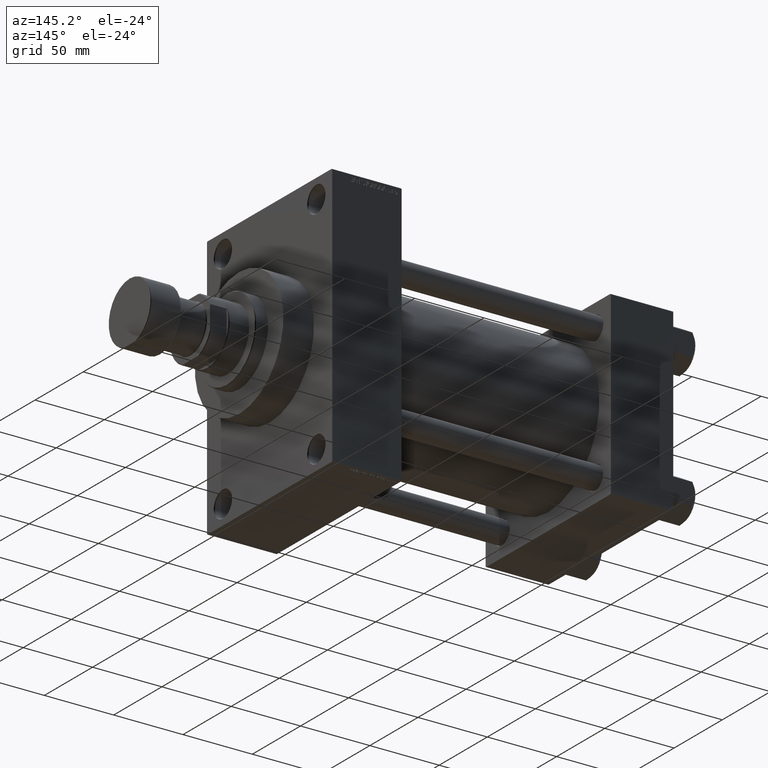
[diagram: clean part render]
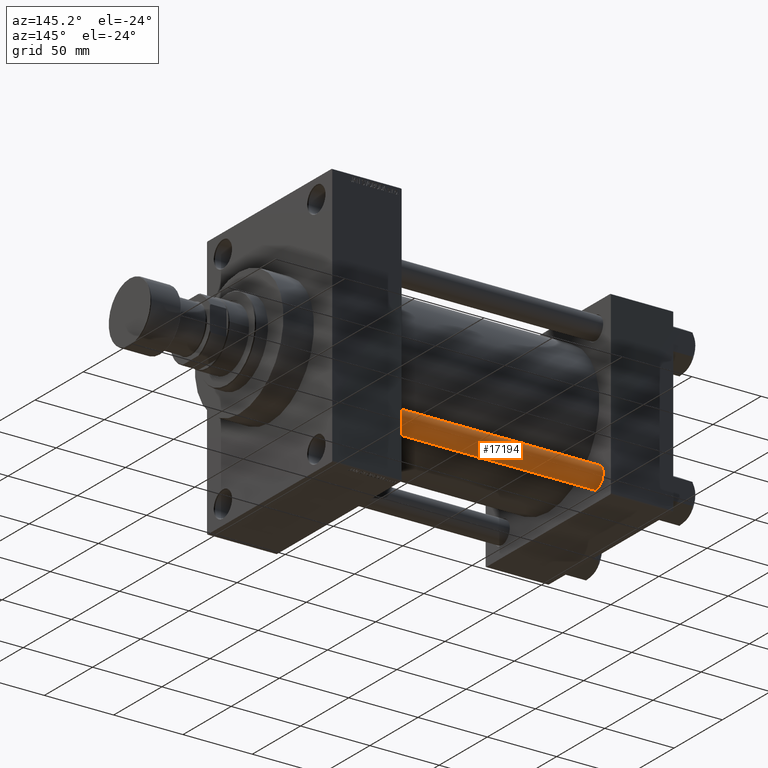
[diagram: same view with one face highlighted and labeled with its STEP entity id]
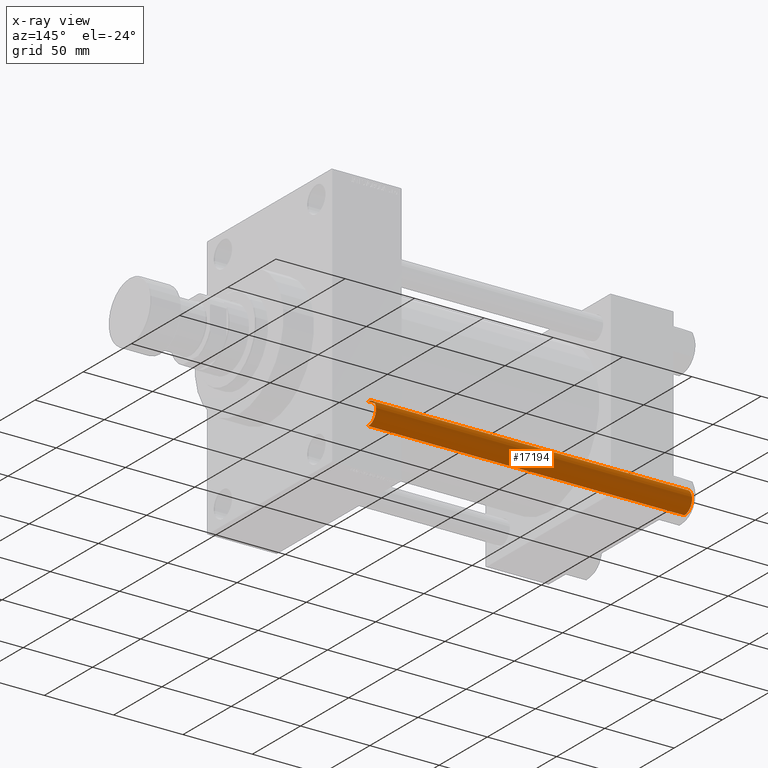
[diagram: x-ray of the same camera — body ghosted, the highlighted face saturated]
A machine part, auxiliary view. The second image highlights one B-rep face of the part: STEP entity #17194.
The next image is the same camera in x-ray: the body ghosted, the highlighted face saturated — about 0% of this face is hidden behind the body in this view.
In plain terms, the highlighted cylindrical surface (edge-blend (fillet) strip) has radius 8 mm, axis along (-1, -0, 0).
Its self-contained STEP definition (entity closure, byte-faithful):
#600 = ORIENTED_EDGE ( 'NONE', *, *, #33848, .T. ) ;
#968 = VERTEX_POINT ( 'NONE', #35203 ) ;
#1947 = CIRCLE ( 'NONE', #26798, 8.000000000000000000 ) ;
#2840 = ORIENTED_EDGE ( 'NONE', *, *, #10446, .T. ) ;
#3716 = VECTOR ( 'NONE', #20575, 1000.000000000000000 ) ;
#5056 = CARTESIAN_POINT ( 'NONE',  ( 8.000000000000000000, 9.797174393178823685E-16, 229.0000000000000000 ) ) ;
#6238 = CIRCLE ( 'NONE', #8601, 8.000000000000000000 ) ;
#8601 = AXIS2_PLACEMENT_3D ( 'NONE', #32843, #9972, #36015 ) ;
#8781 = DIRECTION ( 'NONE',  ( -1.000000000000000000, 0.000000000000000000, 0.000000000000000000 ) ) ;
#9972 = DIRECTION ( 'NONE',  ( 0.000000000000000000, 0.000000000000000000, -1.000000000000000000 ) ) ;
#10446 = EDGE_CURVE ( 'NONE', #42072, #21116, #38385, .T. ) ;
#14068 = EDGE_CURVE ( 'NONE', #968, #42072, #6238, .T. ) ;
#16225 = VECTOR ( 'NONE', #34735, 1000.000000000000000 ) ;
#16555 = FACE_OUTER_BOUND ( 'NONE', #35465, .T. ) ;
#16686 = LINE ( 'NONE', #28345, #3716 ) ;
#17194 = ADVANCED_FACE ( 'NONE', ( #16555 ), #42110, .T. ) ;
#17213 = CARTESIAN_POINT ( 'NONE',  ( -8.000000000000000000, 0.000000000000000000, 0.5000000000001392220 ) ) ;
#18153 = DIRECTION ( 'NONE',  ( 1.000000000000000000, 0.000000000000000000, 0.000000000000000000 ) ) ;
#20575 = DIRECTION ( 'NONE',  ( -0.000000000000000000, -0.000000000000000000, -1.000000000000000000 ) ) ;
#21116 = VERTEX_POINT ( 'NONE', #22195 ) ;
#22195 = CARTESIAN_POINT ( 'NONE',  ( 8.000000000000000000, 9.797174393178823685E-16, 0.5000000000001392220 ) ) ;
#22467 = ORIENTED_EDGE ( 'NONE', *, *, #14068, .T. ) ;
#25630 = ORIENTED_EDGE ( 'NONE', *, *, #40016, .F. ) ;
#26798 = AXIS2_PLACEMENT_3D ( 'NONE', #28849, #47349, #18153 ) ;
#28345 = CARTESIAN_POINT ( 'NONE',  ( -8.000000000000000000, 0.000000000000000000, 229.0000000000000000 ) ) ;
#28849 = CARTESIAN_POINT ( 'NONE',  ( 0.000000000000000000, 0.000000000000000000, 0.5000000000001392220 ) ) ;
#30042 = CARTESIAN_POINT ( 'NONE',  ( 8.000000000000000000, 9.797174393178823685E-16, 228.5000000000000853 ) ) ;
#32843 = CARTESIAN_POINT ( 'NONE',  ( 0.000000000000000000, 0.000000000000000000, 228.5000000000000853 ) ) ;
#33848 = EDGE_CURVE ( 'NONE', #21116, #34692, #1947, .T. ) ;
#34692 = VERTEX_POINT ( 'NONE', #17213 ) ;
#34735 = DIRECTION ( 'NONE',  ( -0.000000000000000000, -0.000000000000000000, -1.000000000000000000 ) ) ;
#34816 = DIRECTION ( 'NONE',  ( -0.000000000000000000, -0.000000000000000000, -1.000000000000000000 ) ) ;
#35203 = CARTESIAN_POINT ( 'NONE',  ( -8.000000000000000000, 0.000000000000000000, 228.5000000000000853 ) ) ;
#35465 = EDGE_LOOP ( 'NONE', ( #22467, #2840, #600, #25630 ) ) ;
#36015 = DIRECTION ( 'NONE',  ( 1.000000000000000000, 0.000000000000000000, 0.000000000000000000 ) ) ;
#38385 = LINE ( 'NONE', #5056, #16225 ) ;
#40016 = EDGE_CURVE ( 'NONE', #968, #34692, #16686, .T. ) ;
#41970 = AXIS2_PLACEMENT_3D ( 'NONE', #43055, #34816, #8781 ) ;
#42072 = VERTEX_POINT ( 'NONE', #30042 ) ;
#42110 = CYLINDRICAL_SURFACE ( 'NONE', #41970, 8.000000000000000000 ) ;
#43055 = CARTESIAN_POINT ( 'NONE',  ( 0.000000000000000000, 0.000000000000000000, 229.0000000000000000 ) ) ;
#47349 = DIRECTION ( 'NONE',  ( -0.000000000000000000, -0.000000000000000000, 1.000000000000000000 ) ) ;